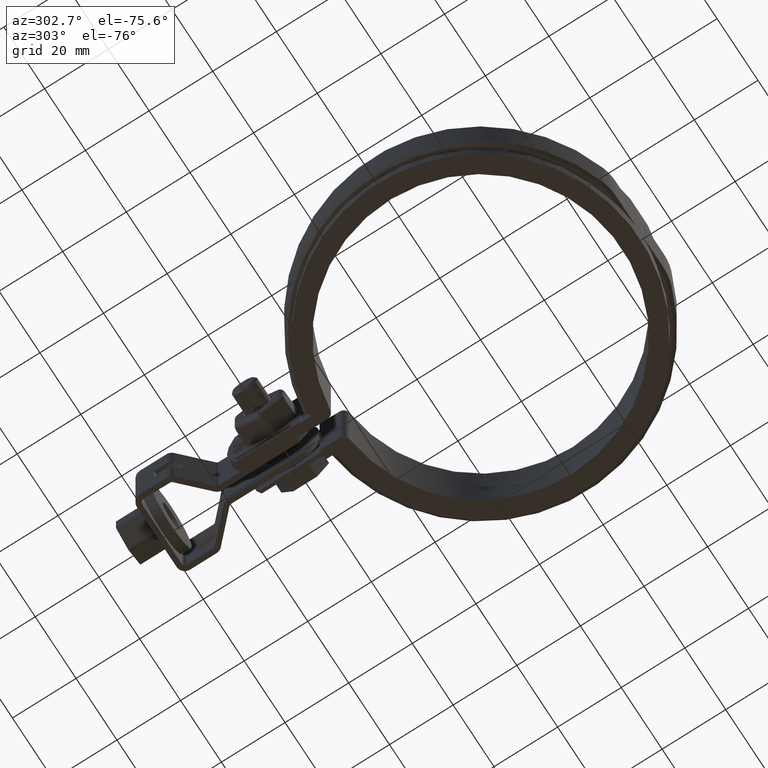
[diagram: clean part render]
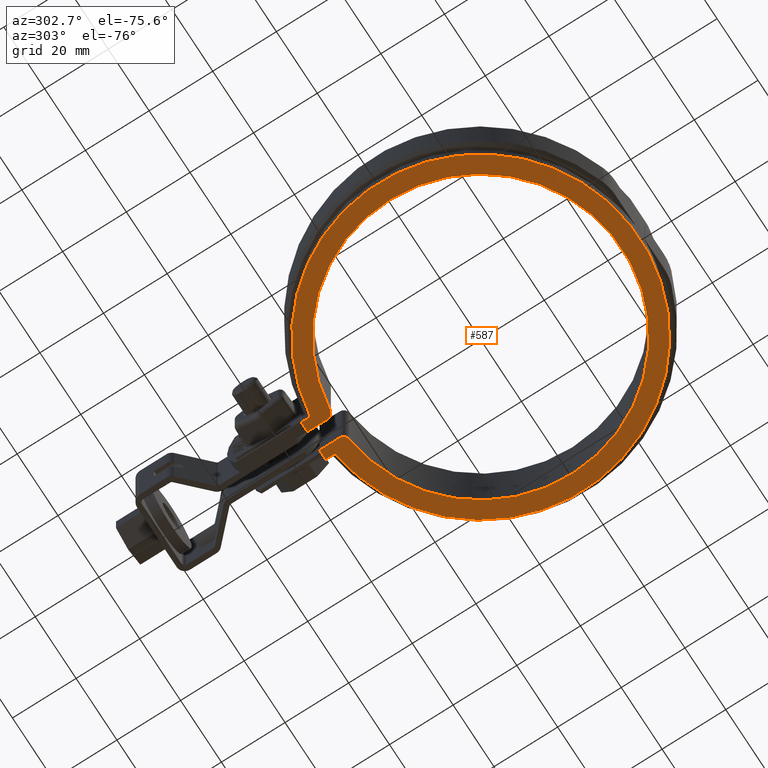
[diagram: same view with one face highlighted and labeled with its STEP entity id]
A machine part, auxiliary view. The second image highlights one B-rep face of the part: STEP entity #587.
In plain terms, the highlighted planar face has unit normal (0, 0, 1).
Its self-contained STEP definition (entity closure, byte-faithful):
#587 = ADVANCED_FACE( '', ( #1087 ), #1088, .F. );
#1087 = FACE_OUTER_BOUND( '', #2376, .T. );
#1088 = PLANE( '', #2377 );
#2376 = EDGE_LOOP( '', ( #5373, #5374, #5375, #5376, #5377, #5378, #5379, #5380, #5381, #5382 ) );
#2377 = AXIS2_PLACEMENT_3D( '', #5383, #5384, #5385 );
#5373 = ORIENTED_EDGE( '', *, *, #7756, .F. );
#5374 = ORIENTED_EDGE( '', *, *, #7660, .T. );
#5375 = ORIENTED_EDGE( '', *, *, #7740, .T. );
#5376 = ORIENTED_EDGE( '', *, *, #7727, .T. );
#5377 = ORIENTED_EDGE( '', *, *, #7521, .T. );
#5378 = ORIENTED_EDGE( '', *, *, #7746, .T. );
#5379 = ORIENTED_EDGE( '', *, *, #7767, .F. );
#5380 = ORIENTED_EDGE( '', *, *, #7558, .F. );
#5381 = ORIENTED_EDGE( '', *, *, #7778, .F. );
#5382 = ORIENTED_EDGE( '', *, *, #7712, .F. );
#5383 = CARTESIAN_POINT( '', ( -5.24039274789011, 48.0518762891908, -14.0000000000000 ) );
#5384 = DIRECTION( '', ( 0.000000000000000, 0.000000000000000, 1.00000000000000 ) );
#5385 = DIRECTION( '', ( 1.00000000000000, 0.000000000000000, 0.000000000000000 ) );
#7521 = EDGE_CURVE( '', #8638, #8636, #8639, .T. );
#7558 = EDGE_CURVE( '', #8705, #8706, #8707, .T. );
#7660 = EDGE_CURVE( '', #8884, #8888, #8890, .T. );
#7712 = EDGE_CURVE( '', #8978, #8979, #8980, .T. );
#7727 = EDGE_CURVE( '', #9003, #8638, #9004, .F. );
#7740 = EDGE_CURVE( '', #8888, #9003, #9021, .T. );
#7746 = EDGE_CURVE( '', #8636, #9028, #9030, .T. );
#7756 = EDGE_CURVE( '', #8884, #8978, #9044, .T. );
#7767 = EDGE_CURVE( '', #8706, #9028, #9059, .T. );
#7778 = EDGE_CURVE( '', #8979, #8705, #9070, .F. );
#8636 = VERTEX_POINT( '', #11782 );
#8638 = VERTEX_POINT( '', #11785 );
#8639 = LINE( '', #11786, #11787 );
#8705 = VERTEX_POINT( '', #12028 );
#8706 = VERTEX_POINT( '', #12029 );
#8707 = CIRCLE( '', #12030, 2.00000000000000 );
#8884 = VERTEX_POINT( '', #12625 );
#8888 = VERTEX_POINT( '', #12631 );
#8890 = LINE( '', #12634, #12635 );
#8978 = VERTEX_POINT( '', #12821 );
#8979 = VERTEX_POINT( '', #12822 );
#8980 = CIRCLE( '', #12823, 2.00000000000000 );
#9003 = VERTEX_POINT( '', #12853 );
#9004 = CIRCLE( '', #12854, 50.0000000000000 );
#9021 = LINE( '', #12881, #12882 );
#9028 = VERTEX_POINT( '', #12895 );
#9030 = LINE( '', #12898, #12899 );
#9044 = LINE( '', #12918, #12919 );
#9059 = LINE( '', #12940, #12941 );
#9070 = CIRCLE( '', #12961, 44.5000000000000 );
#11782 = CARTESIAN_POINT( '', ( -6.00000000000000, 52.5500000000000, -14.0000000000000 ) );
#11785 = CARTESIAN_POINT( '', ( -6.00000000000000, 49.6386945839634, -14.0000000000000 ) );
#11786 = CARTESIAN_POINT( '', ( -6.00000000000000, 48.0518762891908, -14.0000000000000 ) );
#11787 = VECTOR( '', #14599, 1000.00000000000 );
#12028 = CARTESIAN_POINT( '', ( -4.78494623655852, 44.2419968978938, -14.0000000000000 ) );
#12029 = CARTESIAN_POINT( '', ( -2.99999999999934, 46.2304012528553, -14.0000000000000 ) );
#12030 = AXIS2_PLACEMENT_3D( '', #14645, #14646, #14647 );
#12625 = CARTESIAN_POINT( '', ( 2.99999999999999, 52.5500000000000, -14.0000000000000 ) );
#12631 = CARTESIAN_POINT( '', ( 6.00000000000000, 52.5500000000000, -14.0000000000000 ) );
#12634 = CARTESIAN_POINT( '', ( -5.24039274789011, 52.5500000000000, -14.0000000000000 ) );
#12635 = VECTOR( '', #14714, 1000.00000000000 );
#12821 = CARTESIAN_POINT( '', ( 2.99999999999999, 46.2304012528553, -14.0000000000000 ) );
#12822 = CARTESIAN_POINT( '', ( 4.78494623655913, 44.2419968978937, -14.0000000000000 ) );
#12823 = AXIS2_PLACEMENT_3D( '', #14769, #14770, #14771 );
#12853 = CARTESIAN_POINT( '', ( 6.00000000000000, 49.6386945839634, -14.0000000000000 ) );
#12854 = AXIS2_PLACEMENT_3D( '', #14800, #14801, #14802 );
#12881 = CARTESIAN_POINT( '', ( 6.00000000000000, 48.0518762891908, -14.0000000000000 ) );
#12882 = VECTOR( '', #14819, 1000.00000000000 );
#12895 = CARTESIAN_POINT( '', ( -2.99999999999934, 52.5500000000000, -14.0000000000000 ) );
#12898 = CARTESIAN_POINT( '', ( -5.24039274789011, 52.5500000000000, -14.0000000000000 ) );
#12899 = VECTOR( '', #14824, 1000.00000000000 );
#12918 = CARTESIAN_POINT( '', ( 2.99999999999999, 52.5500000000000, -14.0000000000000 ) );
#12919 = VECTOR( '', #14842, 1000.00000000000 );
#12940 = CARTESIAN_POINT( '', ( -2.99999999999934, 46.2304012528553, -14.0000000000000 ) );
#12941 = VECTOR( '', #14861, 1000.00000000000 );
#12961 = AXIS2_PLACEMENT_3D( '', #14874, #14875, #14876 );
#14599 = DIRECTION( '', ( 8.32667268468867E-017, 1.00000000000000, 0.000000000000000 ) );
#14645 = CARTESIAN_POINT( '', ( -4.99999999999934, 46.2304012528553, -14.0000000000000 ) );
#14646 = DIRECTION( '', ( 0.000000000000000, 0.000000000000000, 1.00000000000000 ) );
#14647 = DIRECTION( '', ( 1.00000000000000, 0.000000000000000, 0.000000000000000 ) );
#14714 = DIRECTION( '', ( 1.00000000000000, 2.77555756156289E-017, 0.000000000000000 ) );
#14769 = CARTESIAN_POINT( '', ( 5.00000000000000, 46.2304012528552, -14.0000000000000 ) );
#14770 = DIRECTION( '', ( 0.000000000000000, 0.000000000000000, 1.00000000000000 ) );
#14771 = DIRECTION( '', ( 1.00000000000000, 0.000000000000000, 0.000000000000000 ) );
#14800 = CARTESIAN_POINT( '', ( -8.67361737988404E-016, 6.93889390390723E-015, -14.0000000000000 ) );
#14801 = DIRECTION( '', ( 0.000000000000000, 0.000000000000000, 1.00000000000000 ) );
#14802 = DIRECTION( '', ( 1.00000000000000, 0.000000000000000, 0.000000000000000 ) );
#14819 = DIRECTION( '', ( -8.32667268468867E-017, -1.00000000000000, 0.000000000000000 ) );
#14824 = DIRECTION( '', ( 1.00000000000000, 2.77555756156289E-017, 0.000000000000000 ) );
#14842 = DIRECTION( '', ( -4.16333634234434E-017, -1.00000000000000, 0.000000000000000 ) );
#14861 = DIRECTION( '', ( 4.16333634234434E-017, 1.00000000000000, 0.000000000000000 ) );
#14874 = CARTESIAN_POINT( '', ( 0.000000000000000, -6.93889390390723E-015, -14.0000000000000 ) );
#14875 = DIRECTION( '', ( 0.000000000000000, 0.000000000000000, 1.00000000000000 ) );
#14876 = DIRECTION( '', ( 1.00000000000000, 0.000000000000000, 0.000000000000000 ) );